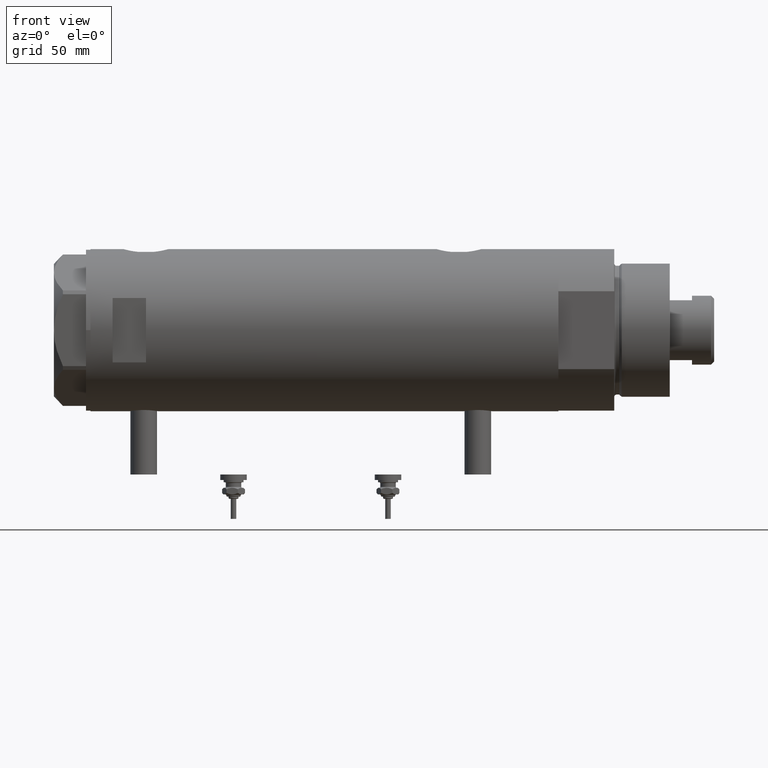
[diagram: clean part render]
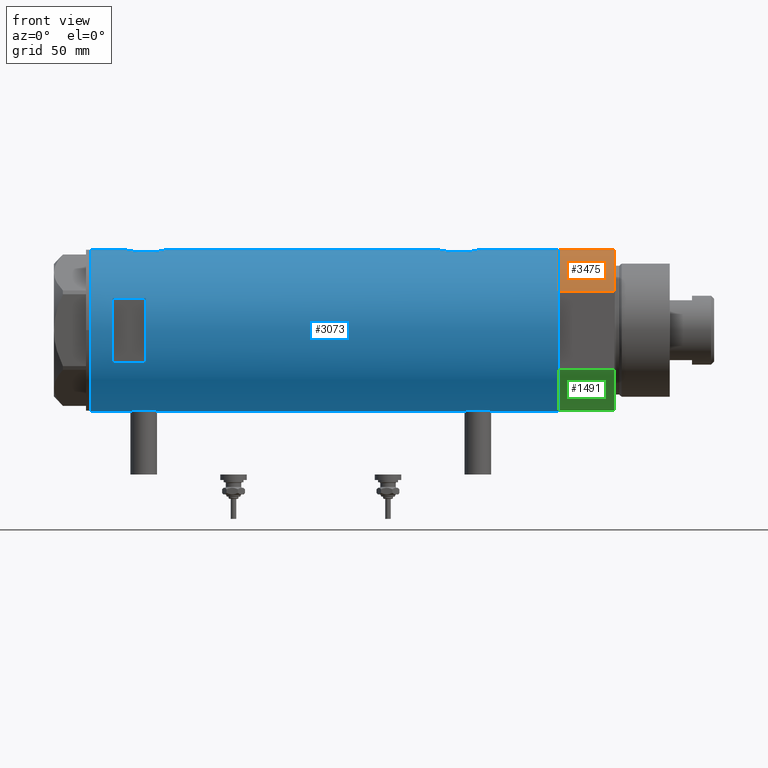
[diagram: same view with three faces highlighted in distinct colors, each labeled with its STEP entity id]
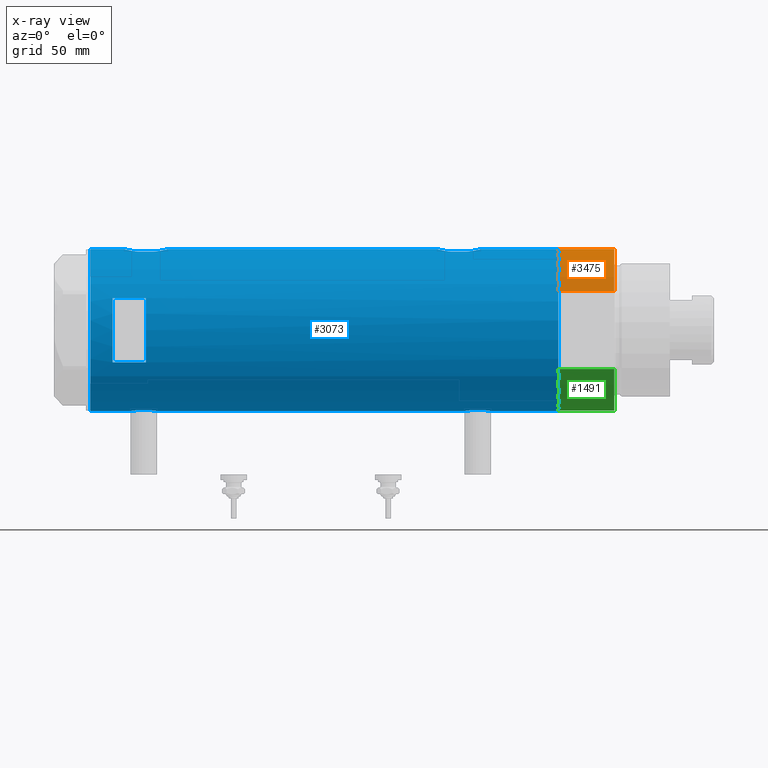
[diagram: x-ray of the same camera — body ghosted, the three highlighted faces saturated]
A machine part, front view with three faces highlighted in distinct colors.
The next image is the same camera in x-ray (body ghosted, the three faces saturated) — at least one of them is partly hidden behind the body in this view.
Their STEP definitions:

[orange] entity #3475 — the highlighted cylindrical surface (partial cylindrical patch) has radius 36.5 mm, axis along (-1, -0, 0).
#112 = CARTESIAN_POINT ( 'NONE',  ( -36.50000000000000000, 0.000000000000000000, 25.19999999999999929 ) ) ;
#250 = CARTESIAN_POINT ( 'NONE',  ( 0.000000000000000000, 0.000000000000000000, 25.19999999999999929 ) ) ;
#1045 = AXIS2_PLACEMENT_3D ( 'NONE', #4621, #4109, #1882 ) ;
#1365 = DIRECTION ( 'NONE',  ( -0.000000000000000000, -0.000000000000000000, 1.000000000000000000 ) ) ;
#1384 = EDGE_LOOP ( 'NONE', ( #5452, #5852, #5638, #1406 ) ) ;
#1396 = VERTEX_POINT ( 'NONE', #112 ) ;
#1406 = ORIENTED_EDGE ( 'NONE', *, *, #5626, .T. ) ;
#1514 = DIRECTION ( 'NONE',  ( 0.000000000000000000, 0.000000000000000000, 1.000000000000000000 ) ) ;
#1681 = EDGE_CURVE ( 'NONE', #5388, #4900, #4369, .T. ) ;
#1882 = DIRECTION ( 'NONE',  ( -1.000000000000000000, 0.000000000000000000, 0.000000000000000000 ) ) ;
#2043 = CARTESIAN_POINT ( 'NONE',  ( -17.55704986607943496, -32.00000000000000000, 0.000000000000000000 ) ) ;
#2159 = EDGE_CURVE ( 'NONE', #1396, #5388, #2613, .T. ) ;
#2302 = FACE_OUTER_BOUND ( 'NONE', #1384, .T. ) ;
#2417 = CARTESIAN_POINT ( 'NONE',  ( -36.50000000000000000, 0.000000000000000000, 0.000000000000000000 ) ) ;
#2591 = DIRECTION ( 'NONE',  ( 1.000000000000000000, 0.000000000000000000, 0.000000000000000000 ) ) ;
#2613 = LINE ( 'NONE', #4428, #2652 ) ;
#2652 = VECTOR ( 'NONE', #3973, 1000.000000000000000 ) ;
#2761 = CARTESIAN_POINT ( 'NONE',  ( -17.55704986607943496, -32.00000000000000000, 25.19999999999999929 ) ) ;
#3042 = AXIS2_PLACEMENT_3D ( 'NONE', #4938, #4437, #2591 ) ;
#3337 = DIRECTION ( 'NONE',  ( 1.000000000000000000, 0.000000000000000000, 0.000000000000000000 ) ) ;
#3475 = ADVANCED_FACE ( 'NONE', ( #2302 ), #5474, .T. ) ;
#3592 = EDGE_CURVE ( 'NONE', #1396, #5716, #4487, .T. ) ;
#3756 = CARTESIAN_POINT ( 'NONE',  ( -17.55704986607943141, -32.00000000000000000, 0.000000000000000000 ) ) ;
#3973 = DIRECTION ( 'NONE',  ( -0.000000000000000000, -0.000000000000000000, -1.000000000000000000 ) ) ;
#4109 = DIRECTION ( 'NONE',  ( -0.000000000000000000, -0.000000000000000000, -1.000000000000000000 ) ) ;
#4369 = CIRCLE ( 'NONE', #3042, 36.50000000000000000 ) ;
#4428 = CARTESIAN_POINT ( 'NONE',  ( -36.50000000000000000, 0.000000000000000000, 25.19999999999999929 ) ) ;
#4437 = DIRECTION ( 'NONE',  ( 0.000000000000000000, 0.000000000000000000, 1.000000000000000000 ) ) ;
#4487 = CIRCLE ( 'NONE', #5163, 36.50000000000000000 ) ;
#4621 = CARTESIAN_POINT ( 'NONE',  ( 0.000000000000000000, 0.000000000000000000, 25.19999999999999929 ) ) ;
#4867 = VECTOR ( 'NONE', #1365, 1000.000000000000000 ) ;
#4900 = VERTEX_POINT ( 'NONE', #2043 ) ;
#4938 = CARTESIAN_POINT ( 'NONE',  ( 0.000000000000000000, 0.000000000000000000, 0.000000000000000000 ) ) ;
#5163 = AXIS2_PLACEMENT_3D ( 'NONE', #250, #1514, #3337 ) ;
#5388 = VERTEX_POINT ( 'NONE', #2417 ) ;
#5452 = ORIENTED_EDGE ( 'NONE', *, *, #3592, .F. ) ;
#5466 = LINE ( 'NONE', #3756, #4867 ) ;
#5474 = CYLINDRICAL_SURFACE ( 'NONE', #1045, 36.50000000000000000 ) ;
#5626 = EDGE_CURVE ( 'NONE', #4900, #5716, #5466, .T. ) ;
#5638 = ORIENTED_EDGE ( 'NONE', *, *, #1681, .T. ) ;
#5716 = VERTEX_POINT ( 'NONE', #2761 ) ;
#5852 = ORIENTED_EDGE ( 'NONE', *, *, #2159, .T. ) ;

[blue] entity #3073 — the highlighted cylindrical surface (partial cylindrical patch) has radius 36.5 mm, axis along (-1, -0, 0).
#15 = DIRECTION ( 'NONE',  ( -0.000000000000000000, -0.000000000000000000, -1.000000000000000000 ) ) ;
#20 = ORIENTED_EDGE ( 'NONE', *, *, #26, .F. ) ;
#26 = EDGE_CURVE ( 'NONE', #2151, #812, #5530, .T. ) ;
#50 = LINE ( 'NONE', #1948, #5454 ) ;
#111 = CARTESIAN_POINT ( 'NONE',  ( 36.50000000000000000, 0.000000000000000000, 70.40000000000000568 ) ) ;
#114 = CARTESIAN_POINT ( 'NONE',  ( 35.39807338191550912, -8.909271871950332766, 85.05080382732786859 ) ) ;
#122 = CARTESIAN_POINT ( 'NONE',  ( 36.21540437201188922, -4.554727782332259167, -51.69402370911375755 ) ) ;
#156 = CARTESIAN_POINT ( 'NONE',  ( -36.06605150775666857, -5.613853192123346325, 78.62234311727455349 ) ) ;
#162 = CARTESIAN_POINT ( 'NONE',  ( -36.50000000000000000, -0.4082012689449570075, -75.35000000000000853 ) ) ;
#167 = EDGE_CURVE ( 'NONE', #2647, #773, #3391, .T. ) ;
#170 = VERTEX_POINT ( 'NONE', #4750 ) ;
#189 = CARTESIAN_POINT ( 'NONE',  ( -36.36635911126388976, -3.125815113635436404, 75.98394399592095283 ) ) ;
#199 = DIRECTION ( 'NONE',  ( 0.000000000000000000, 0.000000000000000000, 1.000000000000000000 ) ) ;
#213 = VERTEX_POINT ( 'NONE', #111 ) ;
#219 = DIRECTION ( 'NONE',  ( 0.000000000000000000, 0.000000000000000000, 1.000000000000000000 ) ) ;
#221 = CARTESIAN_POINT ( 'NONE',  ( -36.26692673949091983, -4.128477002029504739, 76.69000012567835256 ) ) ;
#226 = CARTESIAN_POINT ( 'NONE',  ( -36.35061318816140385, -3.303361544904981795, -74.40964041943017548 ) ) ;
#244 = DIRECTION ( 'NONE',  ( -0.000000000000000000, -4.625929269271492422E-15, 1.000000000000000000 ) ) ;
#246 = CARTESIAN_POINT ( 'NONE',  ( 36.50000000000000000, 0.000000000000000000, -105.4000000000000057 ) ) ;
#275 = DIRECTION ( 'NONE',  ( 0.000000000000000000, 0.000000000000000000, 1.000000000000000000 ) ) ;
#281 = EDGE_CURVE ( 'NONE', #170, #213, #722, .T. ) ;
#288 = CARTESIAN_POINT ( 'NONE',  ( -36.09514898390869320, -5.426114745500165704, -65.97161347053858549 ) ) ;
#290 = VERTEX_POINT ( 'NONE', #310 ) ;
#310 = CARTESIAN_POINT ( 'NONE',  ( 35.29999999999999716, -9.282241108697832033, 76.67978495245235138 ) ) ;
#328 = VERTEX_POINT ( 'NONE', #2554 ) ;
#336 = CARTESIAN_POINT ( 'NONE',  ( 36.12792682573227410, -5.214735277442327899, 71.85306882011298057 ) ) ;
#346 = EDGE_CURVE ( 'NONE', #4679, #2151, #3011, .T. ) ;
#353 = ORIENTED_EDGE ( 'NONE', *, *, #4002, .T. ) ;
#372 = CARTESIAN_POINT ( 'NONE',  ( 35.83108131285855791, -6.958268797611344425, -67.78630783372827295 ) ) ;
#405 = CARTESIAN_POINT ( 'NONE',  ( 36.48960339336945680, -1.002724032967600598, -70.56224865973496208 ) ) ;
#429 = CARTESIAN_POINT ( 'NONE',  ( -14.49137674618942562, -33.50000000000000000, -105.4000000000000057 ) ) ;
#443 = CARTESIAN_POINT ( 'NONE',  ( 36.50000000000000000, -0.5031001875915696031, 70.40000000000000568 ) ) ;
#445 = VECTOR ( 'NONE', #15, 1000.000000000000000 ) ;
#454 = VERTEX_POINT ( 'NONE', #5489 ) ;
#522 = CARTESIAN_POINT ( 'NONE',  ( 36.21540437201187501, -4.554727782332259167, 89.30597629088620693 ) ) ;
#538 = CARTESIAN_POINT ( 'NONE',  ( 36.50000000000000000, -0.4962708696651109141, -50.60000000000000853 ) ) ;
#549 = CARTESIAN_POINT ( 'NONE',  ( -36.46417279006303858, -1.628689148039105028, 87.43753938693819805 ) ) ;
#576 = AXIS2_PLACEMENT_3D ( 'NONE', #2794, #244, #1659 ) ;
#583 = CARTESIAN_POINT ( 'NONE',  ( -36.21356728133256553, -4.566014386638763689, 85.67262660764747295 ) ) ;
#585 = CARTESIAN_POINT ( 'NONE',  ( 36.09633718678917802, -5.417295330713079338, 88.80914867345211405 ) ) ;
#594 = ORIENTED_EDGE ( 'NONE', *, *, #4325, .F. ) ;
#609 = CARTESIAN_POINT ( 'NONE',  ( -36.30176144752230982, -3.814344296723637839, 76.43198298049743755 ) ) ;
#615 = CARTESIAN_POINT ( 'NONE',  ( -36.19666146462961365, -4.704890678739095833, -73.23429859510785889 ) ) ;
#639 = CARTESIAN_POINT ( 'NONE',  ( -36.49315367594275017, -0.8144497809045466719, -75.31039785554756349 ) ) ;
#669 = CARTESIAN_POINT ( 'NONE',  ( -36.16125812922425098, -4.962923794285023504, 85.20446085910759848 ) ) ;
#675 = CARTESIAN_POINT ( 'NONE',  ( -36.36635911126387555, -3.125815113635437292, -74.51605600407904717 ) ) ;
#690 = CARTESIAN_POINT ( 'NONE',  ( -36.50000000000000000, -0.4136690418839316097, -62.85000000000000142 ) ) ;
#702 = CARTESIAN_POINT ( 'NONE',  ( -36.06543684817881257, -5.617774235967366359, -66.33045552028299596 ) ) ;
#722 = LINE ( 'NONE', #246, #2184 ) ;
#729 = CARTESIAN_POINT ( 'NONE',  ( 36.12792682573229541, -5.214735277442327011, -69.14693117988701943 ) ) ;
#743 = LINE ( 'NONE', #2576, #5445 ) ;
#746 = CARTESIAN_POINT ( 'NONE',  ( -36.47262891311152799, -1.427622242603856506, -63.01175370788300256 ) ) ;
#766 = CARTESIAN_POINT ( 'NONE',  ( 35.52320828895290816, -8.411622242316138198, -66.09772865944611908 ) ) ;
#773 = VERTEX_POINT ( 'NONE', #3971 ) ;
#783 = CARTESIAN_POINT ( 'NONE',  ( 35.72742963626382107, -7.471989379615396665, 73.74937739587224428 ) ) ;
#812 = VERTEX_POINT ( 'NONE', #1202 ) ;
#817 = EDGE_CURVE ( 'NONE', #1106, #2647, #743, .T. ) ;
#834 = CARTESIAN_POINT ( 'NONE',  ( 36.29527920868845570, -3.886508670267136978, 71.17283724169138281 ) ) ;
#846 = AXIS2_PLACEMENT_3D ( 'NONE', #5893, #3951, #4409 ) ;
#847 = CARTESIAN_POINT ( 'NONE',  ( 35.29999999999999716, -9.282241108697832033, -64.32021504754764862 ) ) ;
#854 = DIRECTION ( 'NONE',  ( 0.000000000000000000, 0.000000000000000000, 1.000000000000000000 ) ) ;
#860 = ORIENTED_EDGE ( 'NONE', *, *, #346, .F. ) ;
#901 = ORIENTED_EDGE ( 'NONE', *, *, #817, .F. ) ;
#938 = CARTESIAN_POINT ( 'NONE',  ( 36.48988302519020266, -0.9927202255321175839, 90.36326989411300303 ) ) ;
#995 = CARTESIAN_POINT ( 'NONE',  ( -36.50000000000000000, 1.407447864834978200E-15, 87.65000000000000568 ) ) ;
#1025 = CARTESIAN_POINT ( 'NONE',  ( -36.50000000000000000, 4.469960493350315609E-15, -75.35000000000000853 ) ) ;
#1059 = CARTESIAN_POINT ( 'NONE',  ( -36.19599073318030236, -4.702920041824403263, 85.52153831676578477 ) ) ;
#1088 = CARTESIAN_POINT ( 'NONE',  ( -36.16096637594733210, -4.968588355849259841, 77.58665507182242038 ) ) ;
#1106 = VERTEX_POINT ( 'NONE', #5088 ) ;
#1115 = CARTESIAN_POINT ( 'NONE',  ( -36.44454782745417987, -2.020757099930490686, 87.31785864421000554 ) ) ;
#1185 = ORIENTED_EDGE ( 'NONE', *, *, #4717, .F. ) ;
#1202 = CARTESIAN_POINT ( 'NONE',  ( -14.49137674618942739, -33.50000000000000000, 95.40000000000001990 ) ) ;
#1227 = EDGE_CURVE ( 'NONE', #3312, #3739, #2790, .T. ) ;
#1253 = CARTESIAN_POINT ( 'NONE',  ( 35.39794035667549821, -8.909777761736844326, -65.24954159089455175 ) ) ;
#1281 = CARTESIAN_POINT ( 'NONE',  ( 36.44881677724179525, -1.995085670027224367, -70.41180345369464533 ) ) ;
#1393 = LINE ( 'NONE', #429, #445 ) ;
#1410 = EDGE_CURVE ( 'NONE', #812, #454, #1393, .T. ) ;
#1445 = CARTESIAN_POINT ( 'NONE',  ( 36.34247810649306132, -3.420510937483960845, -51.19013481598272364 ) ) ;
#1460 = CARTESIAN_POINT ( 'NONE',  ( 36.50000000000000000, 4.344614706140975428E-19, 90.39999999999999147 ) ) ;
#1462 = CARTESIAN_POINT ( 'NONE',  ( 35.93373217836898448, -6.415110096330618461, 88.08704266355093182 ) ) ;
#1469 = CARTESIAN_POINT ( 'NONE',  ( 36.44931971524464842, -1.985988150549292897, -50.78633139468235669 ) ) ;
#1479 = EDGE_CURVE ( 'NONE', #3504, #4522, #2092, .T. ) ;
#1505 = AXIS2_PLACEMENT_3D ( 'NONE', #4823, #2558, #4375 ) ;
#1507 = CARTESIAN_POINT ( 'NONE',  ( -36.35061318816141807, -3.303361544904982239, 76.09035958056981030 ) ) ;
#1509 = CARTESIAN_POINT ( 'NONE',  ( 36.41918031349424467, -2.473644131148923009, 90.10188345463190274 ) ) ;
#1552 = CARTESIAN_POINT ( 'NONE',  ( -36.26616882068470460, -4.135065845178866439, -64.39584944059907912 ) ) ;
#1570 = CARTESIAN_POINT ( 'NONE',  ( -36.06543684817881257, -5.617774235967358365, 84.16954447971703246 ) ) ;
#1591 = LINE ( 'NONE', #2553, #2574 ) ;
#1593 = CARTESIAN_POINT ( 'NONE',  ( -36.49297138689433240, -0.8222528563518511913, 87.60933112053437810 ) ) ;
#1659 = DIRECTION ( 'NONE',  ( 1.776356839400250465E-15, 1.000000000000000000, 4.562560375171875891E-15 ) ) ;
#1670 = CARTESIAN_POINT ( 'NONE',  ( 36.41856252531823657, -2.482507212621166026, -70.29956512846504779 ) ) ;
#1671 = CARTESIAN_POINT ( 'NONE',  ( -36.21356728133256553, -4.566014386638764577, -64.82737339235256968 ) ) ;
#1679 = B_SPLINE_CURVE_WITH_KNOTS ( 'NONE', 3,
 ( #2384, #3728, #938, #4676, #1509, #3333, #4590, #522, #5037, #4191, #585, #2889, #1462, #5164, #4706, #2770, #114, #1943 ),
 .UNSPECIFIED., .F., .F.,
 ( 4, 2, 2, 2, 2, 2, 2, 2, 4 ),
 ( 0.01190956515753145012, 0.01339852714138288839, 0.01488748912523432666, 0.01637645110908576493, 0.01712093210101148233, 0.01786541309293720320, 0.01935437507678866575, 0.02084333706064012831, 0.02382126102834302220 ),
 .UNSPECIFIED. ) ;
#1703 = CARTESIAN_POINT ( 'NONE',  ( 35.72742963626382107, -7.471989379615396665, -67.25062260412778414 ) ) ;
#1801 = CARTESIAN_POINT ( 'NONE',  ( 35.29999999999999716, -9.282241108697832033, 76.67978495245235138 ) ) ;
#1827 = CARTESIAN_POINT ( 'NONE',  ( -36.46417279006303858, -1.628689148039111245, -63.06246061306185169 ) ) ;
#1894 = CARTESIAN_POINT ( 'NONE',  ( 36.48988302519020976, -0.9927202255321156965, -50.63673010588698986 ) ) ;
#1926 = CARTESIAN_POINT ( 'NONE',  ( -36.50000000000000000, 4.469960816887837641E-15, 105.4000000000000057 ) ) ;
#1941 = CARTESIAN_POINT ( 'NONE',  ( -36.36656776002988067, -3.137002187003158582, 86.82136409273630306 ) ) ;
#1943 = CARTESIAN_POINT ( 'NONE',  ( 35.29999999999999716, -9.282241108697837362, 84.12021504754763157 ) ) ;
#1948 = CARTESIAN_POINT ( 'NONE',  ( 35.29999999999999716, -9.282241108697835585, -105.4000000000000057 ) ) ;
#1954 = CARTESIAN_POINT ( 'NONE',  ( 36.18674680775578167, -4.776679548204626258, -51.81107683068754000 ) ) ;
#1965 = CARTESIAN_POINT ( 'NONE',  ( -35.96087392089863499, -6.250243747806518257, 81.80917490776184309 ) ) ;
#1990 = CARTESIAN_POINT ( 'NONE',  ( -36.09514898390870030, -5.426114745500156822, 84.52838652946140030 ) ) ;
#2001 = VECTOR ( 'NONE', #4581, 1000.000000000000000 ) ;
#2022 = LINE ( 'NONE', #5313, #4085 ) ;
#2024 = CARTESIAN_POINT ( 'NONE',  ( -36.02823773219769521, -5.849994928883552880, 79.19044898514358977 ) ) ;
#2032 = CARTESIAN_POINT ( 'NONE',  ( 36.50000000000000000, 0.000000000000000000, 105.4000000000000057 ) ) ;
#2034 = ORIENTED_EDGE ( 'NONE', *, *, #1479, .T. ) ;
#2054 = CARTESIAN_POINT ( 'NONE',  ( -35.98821803976956346, -6.090959022952118218, 82.81573883149420112 ) ) ;
#2068 = CARTESIAN_POINT ( 'NONE',  ( 35.93373217836897737, -6.415110096330618461, -52.91295733644908239 ) ) ;
#2091 = CARTESIAN_POINT ( 'NONE',  ( -36.46614432713123222, -1.622933015999965090, -75.14966597386846558 ) ) ;
#2092 = CIRCLE ( 'NONE', #4650, 36.50000000000000000 ) ;
#2111 = VECTOR ( 'NONE', #2192, 1000.000000000000000 ) ;
#2151 = VERTEX_POINT ( 'NONE', #5823 ) ;
#2170 = CARTESIAN_POINT ( 'NONE',  ( 36.18850502651836365, -4.779575967213802734, 71.60220847109845010 ) ) ;
#2184 = VECTOR ( 'NONE', #5741, 1000.000000000000000 ) ;
#2192 = DIRECTION ( 'NONE',  ( 0.000000000000000000, 0.000000000000000000, 1.000000000000000000 ) ) ;
#2206 = CARTESIAN_POINT ( 'NONE',  ( 36.18850502651835654, -4.779575967213801846, -69.39779152890153568 ) ) ;
#2228 = FACE_OUTER_BOUND ( 'NONE', #5194, .T. ) ;
#2263 = CARTESIAN_POINT ( 'NONE',  ( -36.50000000000000000, 4.469960493350315609E-15, 75.14999999999999147 ) ) ;
#2298 = VERTEX_POINT ( 'NONE', #1460 ) ;
#2380 = CARTESIAN_POINT ( 'NONE',  ( -36.50000000000000000, -0.4136690418839331640, 87.65000000000000568 ) ) ;
#2384 = CARTESIAN_POINT ( 'NONE',  ( 36.50000000000000000, 4.344614706140975428E-19, 90.39999999999999147 ) ) ;
#2398 = CARTESIAN_POINT ( 'NONE',  ( 36.29582892817134621, -3.881628320031160317, -51.37065565465011474 ) ) ;
#2411 = CARTESIAN_POINT ( 'NONE',  ( -36.26616882068469749, -4.135065845178862887, 86.10415055940092088 ) ) ;
#2439 = CARTESIAN_POINT ( 'NONE',  ( -36.02823773219769521, -5.849994928883553769, -71.30955101485646708 ) ) ;
#2446 = CARTESIAN_POINT ( 'NONE',  ( 36.00092304812866928, -6.029438422680417631, -52.60691844426350627 ) ) ;
#2460 = CARTESIAN_POINT ( 'NONE',  ( -35.99659093586380010, -6.041447834568794306, 83.01422412014827046 ) ) ;
#2485 = CARTESIAN_POINT ( 'NONE',  ( 35.29999999999999716, -9.282241108697837362, -56.87978495245236843 ) ) ;
#2497 = CARTESIAN_POINT ( 'NONE',  ( -36.43335814606992074, -2.212659578761320134, 87.24876399169507124 ) ) ;
#2505 = CARTESIAN_POINT ( 'NONE',  ( -35.96095902952617251, -6.249754054240902690, -69.51658765420471298 ) ) ;
#2519 = CARTESIAN_POINT ( 'NONE',  ( -36.50000000000000000, -5.849986204104554638E-16, -62.85000000000000142 ) ) ;
#2553 = CARTESIAN_POINT ( 'NONE',  ( 36.50000000000000000, 0.000000000000000000, -105.4000000000000057 ) ) ;
#2554 = CARTESIAN_POINT ( 'NONE',  ( 35.29999999999999716, -9.282241108697837362, -56.87978495245236843 ) ) ;
#2558 = DIRECTION ( 'NONE',  ( -0.000000000000000000, 0.000000000000000000, -1.000000000000000000 ) ) ;
#2561 = CARTESIAN_POINT ( 'NONE',  ( -35.98821803976956346, -6.090959022952116442, -67.68426116850582730 ) ) ;
#2574 = VECTOR ( 'NONE', #219, 1000.000000000000000 ) ;
#2576 = CARTESIAN_POINT ( 'NONE',  ( -36.50000000000000000, 4.469960816887837641E-15, -105.4000000000000057 ) ) ;
#2592 = FACE_BOUND ( 'NONE', #2691, .T. ) ;
#2600 = CARTESIAN_POINT ( 'NONE',  ( 36.50000000000000000, -0.5031001875915691590, -70.59999999999999432 ) ) ;
#2647 = VERTEX_POINT ( 'NONE', #2263 ) ;
#2677 = CARTESIAN_POINT ( 'NONE',  ( 35.93363298843767240, -6.415574104180961079, -68.28651472888893181 ) ) ;
#2691 = EDGE_LOOP ( 'NONE', ( #594, #5936, #20, #860 ) ) ;
#2696 = CARTESIAN_POINT ( 'NONE',  ( 36.41856252531824367, -2.482507212621164694, 70.70043487153495221 ) ) ;
#2705 = CARTESIAN_POINT ( 'NONE',  ( -36.50000000000000000, 4.469960493350315609E-15, 75.14999999999999147 ) ) ;
#2723 = CARTESIAN_POINT ( 'NONE',  ( 35.39794035667547689, -8.909777761736840773, 75.75045840910546247 ) ) ;
#2770 = CARTESIAN_POINT ( 'NONE',  ( 35.52323553852026805, -8.411295122831251803, 85.89752392951088211 ) ) ;
#2790 = B_SPLINE_CURVE_WITH_KNOTS ( 'NONE', 3,
 ( #847, #1253, #766, #4853, #1703, #3931, #372, #2677, #3128, #729, #2206, #5782, #4500, #1670, #1281, #405, #2600, #4415 ),
 .UNSPECIFIED., .F., .F.,
 ( 4, 2, 2, 2, 2, 2, 2, 2, 4 ),
 ( -0.01189883390545605317, -0.008924125429092051587, -0.008180448310001049023, -0.007436771190910045591, -0.005949416952728037861, -0.004462062714546030130, -0.002974708476364020665, -0.001487354238182012067, -1.734723475976807094E-18 ),
 .UNSPECIFIED. ) ;
#2794 = CARTESIAN_POINT ( 'NONE',  ( 0.000000000000000000, 0.000000000000000000, 80.40000000000017621 ) ) ;
#2802 = CARTESIAN_POINT ( 'NONE',  ( -36.50000000000000000, 4.469960816887837641E-15, -105.4000000000000057 ) ) ;
#2821 = CARTESIAN_POINT ( 'NONE',  ( -36.01675918113430441, -5.920026275461276910, 79.38560443482106166 ) ) ;
#2850 = LINE ( 'NONE', #3757, #2001 ) ;
#2851 = ORIENTED_EDGE ( 'NONE', *, *, #4414, .T. ) ;
#2852 = CARTESIAN_POINT ( 'NONE',  ( -35.96095902952617251, -6.249754054240901802, 80.98341234579530123 ) ) ;
#2866 = EDGE_CURVE ( 'NONE', #2298, #2998, #1679, .T. ) ;
#2887 = CARTESIAN_POINT ( 'NONE',  ( -36.39558535855675103, -2.764807686268001330, 75.79105881454391636 ) ) ;
#2889 = CARTESIAN_POINT ( 'NONE',  ( 36.00092304812866928, -6.029438422680415854, 88.39308155573650083 ) ) ;
#2898 = VERTEX_POINT ( 'NONE', #1025 ) ;
#2913 = CARTESIAN_POINT ( 'NONE',  ( -36.09582946723050156, -5.421573071064194949, 78.26391721629516951 ) ) ;
#2944 = CARTESIAN_POINT ( 'NONE',  ( -36.47262891311152089, -1.427622242603850955, 87.48824629211701165 ) ) ;
#2954 = CARTESIAN_POINT ( 'NONE',  ( -36.16096637594731078, -4.968588355849257177, -72.91334492817756541 ) ) ;
#2990 = CARTESIAN_POINT ( 'NONE',  ( -36.16125812922422966, -4.962923794285019952, -65.29553914089238731 ) ) ;
#2998 = VERTEX_POINT ( 'NONE', #4458 ) ;
#3002 = CARTESIAN_POINT ( 'NONE',  ( 35.39807338191550912, -8.909271871950334543, -55.94919617267213852 ) ) ;
#3011 = LINE ( 'NONE', #3068, #5419 ) ;
#3018 = CARTESIAN_POINT ( 'NONE',  ( -36.39558535855672972, -2.764807686268001774, -74.70894118545611207 ) ) ;
#3020 = ORIENTED_EDGE ( 'NONE', *, *, #5814, .F. ) ;
#3028 = ORIENTED_EDGE ( 'NONE', *, *, #4069, .F. ) ;
#3041 = CARTESIAN_POINT ( 'NONE',  ( -36.30176144752230982, -3.814344296723638728, -74.06801701950256245 ) ) ;
#3051 = CIRCLE ( 'NONE', #576, 36.50000000000000000 ) ;
#3066 = CARTESIAN_POINT ( 'NONE',  ( 35.69273631926343171, -7.635692914629146344, 73.93799804348510918 ) ) ;
#3068 = CARTESIAN_POINT ( 'NONE',  ( 14.49137674618942562, -33.50000000000000000, -105.4000000000000057 ) ) ;
#3073 = ADVANCED_FACE ( 'NONE', ( #2228, #2592 ), #4037, .T. ) ;
#3114 = ORIENTED_EDGE ( 'NONE', *, *, #4276, .T. ) ;
#3117 = CARTESIAN_POINT ( 'NONE',  ( 35.79656810172927806, -7.133411935499470502, 73.38745121442323693 ) ) ;
#3128 = CARTESIAN_POINT ( 'NONE',  ( 36.00068527486600800, -6.030855700422084631, -68.59201327127354375 ) ) ;
#3182 = CARTESIAN_POINT ( 'NONE',  ( 36.34184199234172041, -3.427106516421252635, 70.99259086319966627 ) ) ;
#3219 = CARTESIAN_POINT ( 'NONE',  ( 35.29999999999999716, -9.282241108697835585, -105.4000000000000057 ) ) ;
#3234 = B_SPLINE_CURVE_WITH_KNOTS ( 'NONE', 3,
 ( #5579, #538, #1894, #1469, #3708, #1445, #2398, #122, #1954, #5273, #3827, #2446, #2068, #4833, #3796, #4229, #3002, #2485 ),
 .UNSPECIFIED., .F., .F.,
 ( 4, 2, 2, 2, 2, 2, 2, 2, 4 ),
 ( 0.01190956515753145185, 0.01339852714138290921, 0.01488748912523436482, 0.01637645110908582391, 0.01712093210101154825, 0.01786541309293727259, 0.01935437507678870739, 0.02084333706064014219, 0.02382126102834301873 ),
 .UNSPECIFIED. ) ;
#3253 = DIRECTION ( 'NONE',  ( 0.000000000000000000, 0.000000000000000000, 1.000000000000000000 ) ) ;
#3301 = CARTESIAN_POINT ( 'NONE',  ( -36.02782481185206365, -5.852531070448502959, 83.60277008952189703 ) ) ;
#3302 = DIRECTION ( 'NONE',  ( 1.000000000000000000, 0.000000000000000000, 0.000000000000000000 ) ) ;
#3312 = VERTEX_POINT ( 'NONE', #5246 ) ;
#3330 = CARTESIAN_POINT ( 'NONE',  ( -36.01639592019626690, -5.922235714778416593, 83.40796802426915235 ) ) ;
#3333 = CARTESIAN_POINT ( 'NONE',  ( 36.34247810649306842, -3.420510937483958624, 89.80986518401728347 ) ) ;
#3336 = ORIENTED_EDGE ( 'NONE', *, *, #281, .T. ) ;
#3372 = CARTESIAN_POINT ( 'NONE',  ( -35.96087392089863499, -6.250243747806517369, -68.69082509223819955 ) ) ;
#3391 = B_SPLINE_CURVE_WITH_KNOTS ( 'NONE', 3,
 ( #2705, #4528, #5924, #5592, #3398, #5220, #2887, #189, #1507, #609, #221, #5683, #1088, #2913, #156, #2024, #2821, #3839, #3759, #5102, #2852, #1965, #3778, #2054, #2460, #3330, #3301, #1570, #1990, #4672, #669, #1059, #583, #2411, #5162, #1941, #4271, #2497, #1115, #549, #2944, #1593, #2380, #995 ),
 .UNSPECIFIED., .F., .F.,
 ( 4, 2, 2, 2, 2, 2, 2, 2, 2, 2, 2, 2, 2, 2, 2, 2, 2, 2, 2, 2, 2, 4 ),
 ( 0.01957644481942642095, 0.02079966591703042919, 0.02202288701463443396, 0.02263449756343643635, 0.02324610811223844220, 0.02446932920984244697, 0.02569255030744645174, 0.02691577140505045651, 0.02752738195385245890, 0.02813899250265446475, 0.02936221360025851115, 0.03058543469786256103, 0.03119704524666458423, 0.03180865579546660743, 0.03303187689307068853, 0.03364348744187271173, 0.03425509799067473493, 0.03547831908827876746, 0.03670154018588278610, 0.03731315073468480237, 0.03792476128348681169, 0.03914798238109083728 ),
 .UNSPECIFIED. ) ;
#3398 = CARTESIAN_POINT ( 'NONE',  ( -36.44621655743048905, -2.016281777336075276, 75.47017023300884375 ) ) ;
#3404 = CARTESIAN_POINT ( 'NONE',  ( -35.99695583620882644, -6.039273428153906664, -70.72224444987757863 ) ) ;
#3438 = CARTESIAN_POINT ( 'NONE',  ( -36.01639592019627401, -5.922235714778421034, -67.09203197573087607 ) ) ;
#3504 = VERTEX_POINT ( 'NONE', #2802 ) ;
#3620 = CARTESIAN_POINT ( 'NONE',  ( 35.83108131285855791, -6.958268797611344425, 73.21369216627172705 ) ) ;
#3708 = CARTESIAN_POINT ( 'NONE',  ( 36.41918031349423757, -2.473644131148925673, -50.89811654536808305 ) ) ;
#3728 = CARTESIAN_POINT ( 'NONE',  ( 36.50000000000002132, -0.4962708696651109141, 90.40000000000001990 ) ) ;
#3739 = VERTEX_POINT ( 'NONE', #3955 ) ;
#3746 = CARTESIAN_POINT ( 'NONE',  ( 14.49137674618942739, -33.50000000000000000, 80.40000000000003411 ) ) ;
#3757 = CARTESIAN_POINT ( 'NONE',  ( 36.50000000000000000, 0.000000000000000000, -105.4000000000000057 ) ) ;
#3759 = CARTESIAN_POINT ( 'NONE',  ( -35.98855750525640929, -6.088954600884529000, 79.97569773849832586 ) ) ;
#3778 = CARTESIAN_POINT ( 'NONE',  ( -35.96794010939611752, -6.209972807992079957, 82.21555548991356943 ) ) ;
#3796 = CARTESIAN_POINT ( 'NONE',  ( 35.72583162417570435, -7.484316398521970726, -53.94957356280497862 ) ) ;
#3815 = CARTESIAN_POINT ( 'NONE',  ( -35.96794010939611752, -6.209972807992079069, -68.28444451008647320 ) ) ;
#3827 = CARTESIAN_POINT ( 'NONE',  ( 36.09633718678916381, -5.417295330713082002, -52.19085132654786463 ) ) ;
#3839 = CARTESIAN_POINT ( 'NONE',  ( -35.99695583620881223, -6.039273428153904888, 79.77775555012243558 ) ) ;
#3844 = CARTESIAN_POINT ( 'NONE',  ( -36.40915499150419521, -2.580495338846545472, -74.79605013355477183 ) ) ;
#3868 = CARTESIAN_POINT ( 'NONE',  ( -36.50000000000000000, 4.469960493350315609E-15, -75.35000000000000853 ) ) ;
#3914 = CARTESIAN_POINT ( 'NONE',  ( -36.39621039793028956, -2.776267550998802847, -63.48569246893222129 ) ) ;
#3931 = CARTESIAN_POINT ( 'NONE',  ( 35.79656810172927806, -7.133411935499470502, -67.61254878557679149 ) ) ;
#3932 = CARTESIAN_POINT ( 'NONE',  ( -36.14410773716529235, -5.085921866747752595, -65.46164121579531070 ) ) ;
#3951 = DIRECTION ( 'NONE',  ( 0.000000000000000000, 0.000000000000000000, 1.000000000000000000 ) ) ;
#3955 = CARTESIAN_POINT ( 'NONE',  ( 36.50000000000000000, 0.000000000000000000, -70.59999999999999432 ) ) ;
#3971 = CARTESIAN_POINT ( 'NONE',  ( -36.50000000000000000, 1.407447864834978200E-15, 87.65000000000000568 ) ) ;
#3975 = CARTESIAN_POINT ( 'NONE',  ( 35.93363298843768661, -6.415574104180961967, 72.71348527111108240 ) ) ;
#4002 = EDGE_CURVE ( 'NONE', #290, #2998, #50, .T. ) ;
#4028 = VERTEX_POINT ( 'NONE', #2032 ) ;
#4037 = CYLINDRICAL_SURFACE ( 'NONE', #846, 36.50000000000000000 ) ;
#4069 = EDGE_CURVE ( 'NONE', #2898, #1106, #4087, .T. ) ;
#4075 = CARTESIAN_POINT ( 'NONE',  ( -36.30107494031872761, -3.820993528321232624, -64.13693846463692694 ) ) ;
#4085 = VECTOR ( 'NONE', #4725, 1000.000000000000000 ) ;
#4087 = B_SPLINE_CURVE_WITH_KNOTS ( 'NONE', 3,
 ( #3868, #162, #639, #2091, #4250, #3844, #3018, #675, #226, #3041, #5719, #615, #2954, #5755, #5783, #2439, #4283, #3404, #5227, #4826, #2505, #3372, #3815, #2561, #4379, #3438, #5263, #702, #288, #3932, #2990, #4795, #1671, #1552, #4075, #5794, #3914, #5769, #5934, #1827, #746, #4780, #690, #2519 ),
 .UNSPECIFIED., .F., .F.,
 ( 4, 2, 2, 2, 2, 2, 2, 2, 2, 2, 2, 2, 2, 2, 2, 2, 2, 2, 2, 2, 2, 4 ),
 ( 0.01957644481942642095, 0.02079966591703045695, 0.02202288701463449294, 0.02263449756343650573, 0.02324610811223851506, 0.02446932920984253371, 0.02569255030744655582, 0.02691577140505057447, 0.02752738195385256298, 0.02813899250265455843, 0.02936221360025857707, 0.03058543469786260266, 0.03119704524666461198, 0.03180865579546662825, 0.03303187689307068159, 0.03364348744187269785, 0.03425509799067470718, 0.03547831908827873970, 0.03670154018588277223, 0.03731315073468478849, 0.03792476128348680475, 0.03914798238109083034 ),
 .UNSPECIFIED. ) ;
#4191 = CARTESIAN_POINT ( 'NONE',  ( 36.12724769814494152, -5.207618053557752980, 88.94064120488462777 ) ) ;
#4192 = AXIS2_PLACEMENT_3D ( 'NONE', #4746, #5248, #4216 ) ;
#4216 = DIRECTION ( 'NONE',  ( 1.000000000000000000, 0.000000000000000000, 0.000000000000000000 ) ) ;
#4229 = CARTESIAN_POINT ( 'NONE',  ( 35.52323553852026095, -8.411295122831242921, -55.10247607048913210 ) ) ;
#4250 = CARTESIAN_POINT ( 'NONE',  ( -36.44621655743050326, -2.016281777336077052, -75.02982976699117046 ) ) ;
#4271 = CARTESIAN_POINT ( 'NONE',  ( -36.39621039793029666, -2.776267550998800182, 87.01430753106777161 ) ) ;
#4276 = EDGE_CURVE ( 'NONE', #4522, #3739, #2850, .T. ) ;
#4283 = CARTESIAN_POINT ( 'NONE',  ( -36.01675918113429020, -5.920026275461276910, -71.11439556517890992 ) ) ;
#4325 = EDGE_CURVE ( 'NONE', #454, #4679, #3051, .T. ) ;
#4367 = EDGE_CURVE ( 'NONE', #773, #4670, #2022, .T. ) ;
#4371 = B_SPLINE_CURVE_WITH_KNOTS ( 'NONE', 3,
 ( #1801, #2723, #5336, #3066, #783, #3117, #3620, #3975, #4433, #336, #2170, #834, #3182, #2696, #5458, #4542, #443, #5829 ),
 .UNSPECIFIED., .F., .F.,
 ( 4, 2, 2, 2, 2, 2, 2, 2, 4 ),
 ( -0.01189883390545605317, -0.008924125429092049852, -0.008180448310001047288, -0.007436771190910044724, -0.005949416952728036993, -0.004462062714546029263, -0.002974708476364020665, -0.001487354238182010333, -1.734723475976807094E-18 ),
 .UNSPECIFIED. ) ;
#4375 = DIRECTION ( 'NONE',  ( 1.000000000000000000, 0.000000000000000000, 0.000000000000000000 ) ) ;
#4379 = CARTESIAN_POINT ( 'NONE',  ( -35.99659093586380010, -6.041447834568798747, -67.48577587985177217 ) ) ;
#4394 = DIRECTION ( 'NONE',  ( 0.000000000000000000, 0.000000000000000000, 1.000000000000000000 ) ) ;
#4396 = ORIENTED_EDGE ( 'NONE', *, *, #1227, .F. ) ;
#4409 = DIRECTION ( 'NONE',  ( 1.000000000000000000, 0.000000000000000000, 0.000000000000000000 ) ) ;
#4414 = EDGE_CURVE ( 'NONE', #2298, #4028, #1591, .T. ) ;
#4415 = CARTESIAN_POINT ( 'NONE',  ( 36.50000000000000000, 0.000000000000000000, -70.59999999999999432 ) ) ;
#4433 = CARTESIAN_POINT ( 'NONE',  ( 36.00068527486601511, -6.030855700422084631, 72.40798672872645625 ) ) ;
#4436 = ORIENTED_EDGE ( 'NONE', *, *, #167, .F. ) ;
#4458 = CARTESIAN_POINT ( 'NONE',  ( 35.29999999999999716, -9.282241108697837362, 84.12021504754763157 ) ) ;
#4500 = CARTESIAN_POINT ( 'NONE',  ( 36.34184199234172041, -3.427106516421252635, -70.00740913680033373 ) ) ;
#4520 = CARTESIAN_POINT ( 'NONE',  ( 36.50000000000000000, 0.000000000000000000, -105.4000000000000057 ) ) ;
#4522 = VERTEX_POINT ( 'NONE', #4520 ) ;
#4528 = CARTESIAN_POINT ( 'NONE',  ( -36.50000000000000000, -0.4082012689449558418, 75.15000000000001990 ) ) ;
#4542 = CARTESIAN_POINT ( 'NONE',  ( 36.48960339336945680, -1.002724032967599488, 70.43775134026503792 ) ) ;
#4581 = DIRECTION ( 'NONE',  ( 0.000000000000000000, 0.000000000000000000, 1.000000000000000000 ) ) ;
#4584 = EDGE_CURVE ( 'NONE', #290, #213, #4371, .T. ) ;
#4590 = CARTESIAN_POINT ( 'NONE',  ( 36.29582892817134621, -3.881628320031161650, 89.62934434534990658 ) ) ;
#4650 = AXIS2_PLACEMENT_3D ( 'NONE', #5526, #3253, #3302 ) ;
#4670 = VERTEX_POINT ( 'NONE', #1926 ) ;
#4672 = CARTESIAN_POINT ( 'NONE',  ( -36.14410773716529235, -5.085921866747742826, 85.03835878420473193 ) ) ;
#4676 = CARTESIAN_POINT ( 'NONE',  ( 36.44931971524466263, -1.985988150549296671, 90.21366860531762200 ) ) ;
#4679 = VERTEX_POINT ( 'NONE', #3746 ) ;
#4706 = CARTESIAN_POINT ( 'NONE',  ( 35.72583162417569724, -7.484316398521979607, 87.05042643719500006 ) ) ;
#4717 = EDGE_CURVE ( 'NONE', #170, #328, #3234, .T. ) ;
#4725 = DIRECTION ( 'NONE',  ( 0.000000000000000000, 0.000000000000000000, 1.000000000000000000 ) ) ;
#4746 = CARTESIAN_POINT ( 'NONE',  ( 0.000000000000000000, 0.000000000000000000, 105.4000000000000057 ) ) ;
#4750 = CARTESIAN_POINT ( 'NONE',  ( 36.50000000000000000, 4.344609657431182014E-19, -50.60000000000000853 ) ) ;
#4756 = VECTOR ( 'NONE', #854, 1000.000000000000000 ) ;
#4780 = CARTESIAN_POINT ( 'NONE',  ( -36.49297138689433950, -0.8222528563518539668, -62.89066887946567874 ) ) ;
#4795 = CARTESIAN_POINT ( 'NONE',  ( -36.19599073318029525, -4.702920041824404151, -64.97846168323422944 ) ) ;
#4823 = CARTESIAN_POINT ( 'NONE',  ( 0.000000000000000000, 0.000000000000000000, 95.40000000000001990 ) ) ;
#4826 = CARTESIAN_POINT ( 'NONE',  ( -35.96816095843705341, -6.208699946936202529, -69.92496377127788776 ) ) ;
#4833 = CARTESIAN_POINT ( 'NONE',  ( 35.79638309643554805, -7.141827709208433461, -53.58298073030452713 ) ) ;
#4842 = LINE ( 'NONE', #5828, #2111 ) ;
#4853 = CARTESIAN_POINT ( 'NONE',  ( 35.69273631926343171, -7.635692914629146344, -67.06200195651491924 ) ) ;
#4952 = LINE ( 'NONE', #3219, #4756 ) ;
#5037 = CARTESIAN_POINT ( 'NONE',  ( 36.18674680775578167, -4.776679548204628034, 89.18892316931248843 ) ) ;
#5088 = CARTESIAN_POINT ( 'NONE',  ( -36.50000000000000000, -5.849986204104554638E-16, -62.85000000000000142 ) ) ;
#5102 = CARTESIAN_POINT ( 'NONE',  ( -35.96816095843706051, -6.208699946936200753, 80.57503622872214066 ) ) ;
#5141 = EDGE_CURVE ( 'NONE', #3312, #328, #4952, .T. ) ;
#5162 = CARTESIAN_POINT ( 'NONE',  ( -36.30107494031871340, -3.820993528321230848, 86.36306153536308727 ) ) ;
#5164 = CARTESIAN_POINT ( 'NONE',  ( 35.79638309643554805, -7.141827709208433461, 87.41701926969550129 ) ) ;
#5194 = EDGE_LOOP ( 'NONE', ( #5294, #2034, #3114, #4396, #5288, #1185, #3336, #5885, #353, #5605, #2851, #3020, #5692, #4436, #901, #3028 ) ) ;
#5220 = CARTESIAN_POINT ( 'NONE',  ( -36.40915499150420231, -2.580495338846545472, 75.70394986644525659 ) ) ;
#5227 = CARTESIAN_POINT ( 'NONE',  ( -35.98855750525640929, -6.088954600884531665, -70.52430226150165993 ) ) ;
#5246 = CARTESIAN_POINT ( 'NONE',  ( 35.29999999999999716, -9.282241108697832033, -64.32021504754764862 ) ) ;
#5248 = DIRECTION ( 'NONE',  ( 0.000000000000000000, 0.000000000000000000, 1.000000000000000000 ) ) ;
#5263 = CARTESIAN_POINT ( 'NONE',  ( -36.02782481185206365, -5.852531070448510953, -66.89722991047813139 ) ) ;
#5273 = CARTESIAN_POINT ( 'NONE',  ( 36.12724769814494863, -5.207618053557752091, -52.05935879511539355 ) ) ;
#5288 = ORIENTED_EDGE ( 'NONE', *, *, #5141, .T. ) ;
#5294 = ORIENTED_EDGE ( 'NONE', *, *, #5302, .F. ) ;
#5302 = EDGE_CURVE ( 'NONE', #3504, #2898, #4842, .T. ) ;
#5313 = CARTESIAN_POINT ( 'NONE',  ( -36.50000000000000000, 4.469960816887837641E-15, -105.4000000000000057 ) ) ;
#5336 = CARTESIAN_POINT ( 'NONE',  ( 35.52320828895290816, -8.411622242316136422, 74.90227134055386671 ) ) ;
#5419 = VECTOR ( 'NONE', #275, 1000.000000000000000 ) ;
#5445 = VECTOR ( 'NONE', #4394, 1000.000000000000000 ) ;
#5454 = VECTOR ( 'NONE', #199, 1000.000000000000000 ) ;
#5458 = CARTESIAN_POINT ( 'NONE',  ( 36.44881677724178815, -1.995085670027225255, 70.58819654630536888 ) ) ;
#5489 = CARTESIAN_POINT ( 'NONE',  ( -14.49137674618942739, -33.50000000000000000, 80.40000000000003411 ) ) ;
#5526 = CARTESIAN_POINT ( 'NONE',  ( 0.000000000000000000, 0.000000000000000000, -105.4000000000000057 ) ) ;
#5530 = CIRCLE ( 'NONE', #1505, 36.50000000000000000 ) ;
#5579 = CARTESIAN_POINT ( 'NONE',  ( 36.50000000000000000, 4.344609657431182014E-19, -50.60000000000000853 ) ) ;
#5592 = CARTESIAN_POINT ( 'NONE',  ( -36.46614432713122511, -1.622933015999963535, 75.35033402613152020 ) ) ;
#5605 = ORIENTED_EDGE ( 'NONE', *, *, #2866, .F. ) ;
#5683 = CARTESIAN_POINT ( 'NONE',  ( -36.19666146462961365, -4.704890678739094945, 77.26570140489216953 ) ) ;
#5692 = ORIENTED_EDGE ( 'NONE', *, *, #4367, .F. ) ;
#5719 = CARTESIAN_POINT ( 'NONE',  ( -36.26692673949092693, -4.128477002029505627, -73.80999987432171849 ) ) ;
#5741 = DIRECTION ( 'NONE',  ( 0.000000000000000000, 0.000000000000000000, 1.000000000000000000 ) ) ;
#5755 = CARTESIAN_POINT ( 'NONE',  ( -36.09582946723050867, -5.421573071064194060, -72.23608278370490154 ) ) ;
#5769 = CARTESIAN_POINT ( 'NONE',  ( -36.43335814606992784, -2.212659578761321022, -63.25123600830491455 ) ) ;
#5782 = CARTESIAN_POINT ( 'NONE',  ( 36.29527920868844149, -3.886508670267136090, -69.82716275830863140 ) ) ;
#5783 = CARTESIAN_POINT ( 'NONE',  ( -36.06605150775667568, -5.613853192123348101, -71.87765688272543230 ) ) ;
#5794 = CARTESIAN_POINT ( 'NONE',  ( -36.36656776002988067, -3.137002187003159914, -63.67863590726370404 ) ) ;
#5814 = EDGE_CURVE ( 'NONE', #4670, #4028, #5849, .T. ) ;
#5823 = CARTESIAN_POINT ( 'NONE',  ( 14.49137674618942739, -33.50000000000000000, 95.40000000000001990 ) ) ;
#5828 = CARTESIAN_POINT ( 'NONE',  ( -36.50000000000000000, 4.469960816887837641E-15, -105.4000000000000057 ) ) ;
#5829 = CARTESIAN_POINT ( 'NONE',  ( 36.50000000000000000, 0.000000000000000000, 70.40000000000000568 ) ) ;
#5849 = CIRCLE ( 'NONE', #4192, 36.50000000000000000 ) ;
#5885 = ORIENTED_EDGE ( 'NONE', *, *, #4584, .F. ) ;
#5893 = CARTESIAN_POINT ( 'NONE',  ( 0.000000000000000000, 0.000000000000000000, -105.4000000000000057 ) ) ;
#5924 = CARTESIAN_POINT ( 'NONE',  ( -36.49315367594273596, -0.8144497809045445624, 75.18960214445246493 ) ) ;
#5934 = CARTESIAN_POINT ( 'NONE',  ( -36.44454782745417276, -2.020757099930496903, -63.18214135579003710 ) ) ;
#5936 = ORIENTED_EDGE ( 'NONE', *, *, #1410, .F. ) ;

[green] entity #1491 — the highlighted cylindrical surface (partial cylindrical patch) has radius 36.5 mm, axis along (-1, -0, 0).
#31 = VERTEX_POINT ( 'NONE', #1815 ) ;
#39 = CARTESIAN_POINT ( 'NONE',  ( 17.55704986607943141, 32.00000000000000000, 0.000000000000000000 ) ) ;
#178 = CARTESIAN_POINT ( 'NONE',  ( 17.55704986607943141, -32.00000000000000000, 0.000000000000000000 ) ) ;
#215 = CARTESIAN_POINT ( 'NONE',  ( 17.55704986607943496, 32.00000000000000000, 0.000000000000000000 ) ) ;
#487 = LINE ( 'NONE', #39, #1040 ) ;
#1040 = VECTOR ( 'NONE', #2452, 1000.000000000000000 ) ;
#1060 = CYLINDRICAL_SURFACE ( 'NONE', #3610, 36.50000000000000000 ) ;
#1127 = ORIENTED_EDGE ( 'NONE', *, *, #1893, .F. ) ;
#1491 = ADVANCED_FACE ( 'NONE', ( #4345 ), #1060, .T. ) ;
#1546 = DIRECTION ( 'NONE',  ( -1.000000000000000000, 0.000000000000000000, 0.000000000000000000 ) ) ;
#1707 = ORIENTED_EDGE ( 'NONE', *, *, #4405, .F. ) ;
#1815 = CARTESIAN_POINT ( 'NONE',  ( 17.55704986607943141, -32.00000000000000000, 0.000000000000000000 ) ) ;
#1893 = EDGE_CURVE ( 'NONE', #31, #5052, #5118, .T. ) ;
#1991 = DIRECTION ( 'NONE',  ( -0.000000000000000000, -0.000000000000000000, -1.000000000000000000 ) ) ;
#2080 = ORIENTED_EDGE ( 'NONE', *, *, #3278, .T. ) ;
#2114 = CARTESIAN_POINT ( 'NONE',  ( 0.000000000000000000, 0.000000000000000000, 25.19999999999999929 ) ) ;
#2452 = DIRECTION ( 'NONE',  ( -0.000000000000000000, -0.000000000000000000, 1.000000000000000000 ) ) ;
#2566 = VERTEX_POINT ( 'NONE', #215 ) ;
#2774 = CARTESIAN_POINT ( 'NONE',  ( 17.55704986607943496, -32.00000000000000000, 25.19999999999999929 ) ) ;
#2963 = CIRCLE ( 'NONE', #5357, 36.50000000000000000 ) ;
#3278 = EDGE_CURVE ( 'NONE', #2566, #3470, #487, .T. ) ;
#3334 = AXIS2_PLACEMENT_3D ( 'NONE', #2114, #3837, #5282 ) ;
#3421 = DIRECTION ( 'NONE',  ( 0.000000000000000000, 0.000000000000000000, 1.000000000000000000 ) ) ;
#3470 = VERTEX_POINT ( 'NONE', #3692 ) ;
#3610 = AXIS2_PLACEMENT_3D ( 'NONE', #4312, #1991, #1546 ) ;
#3692 = CARTESIAN_POINT ( 'NONE',  ( 17.55704986607943496, 32.00000000000000000, 25.19999999999999929 ) ) ;
#3837 = DIRECTION ( 'NONE',  ( 0.000000000000000000, 0.000000000000000000, 1.000000000000000000 ) ) ;
#3900 = CIRCLE ( 'NONE', #3334, 36.50000000000000000 ) ;
#4302 = DIRECTION ( 'NONE',  ( -0.000000000000000000, -0.000000000000000000, 1.000000000000000000 ) ) ;
#4312 = CARTESIAN_POINT ( 'NONE',  ( 0.000000000000000000, 0.000000000000000000, 25.19999999999999929 ) ) ;
#4345 = FACE_OUTER_BOUND ( 'NONE', #4451, .T. ) ;
#4405 = EDGE_CURVE ( 'NONE', #5052, #3470, #3900, .T. ) ;
#4448 = ORIENTED_EDGE ( 'NONE', *, *, #5252, .T. ) ;
#4451 = EDGE_LOOP ( 'NONE', ( #1707, #1127, #4448, #2080 ) ) ;
#5052 = VERTEX_POINT ( 'NONE', #2774 ) ;
#5118 = LINE ( 'NONE', #178, #5242 ) ;
#5121 = DIRECTION ( 'NONE',  ( 1.000000000000000000, 0.000000000000000000, 0.000000000000000000 ) ) ;
#5242 = VECTOR ( 'NONE', #4302, 1000.000000000000000 ) ;
#5252 = EDGE_CURVE ( 'NONE', #31, #2566, #2963, .T. ) ;
#5282 = DIRECTION ( 'NONE',  ( 1.000000000000000000, 0.000000000000000000, 0.000000000000000000 ) ) ;
#5357 = AXIS2_PLACEMENT_3D ( 'NONE', #5709, #3421, #5121 ) ;
#5709 = CARTESIAN_POINT ( 'NONE',  ( 0.000000000000000000, 0.000000000000000000, 0.000000000000000000 ) ) ;